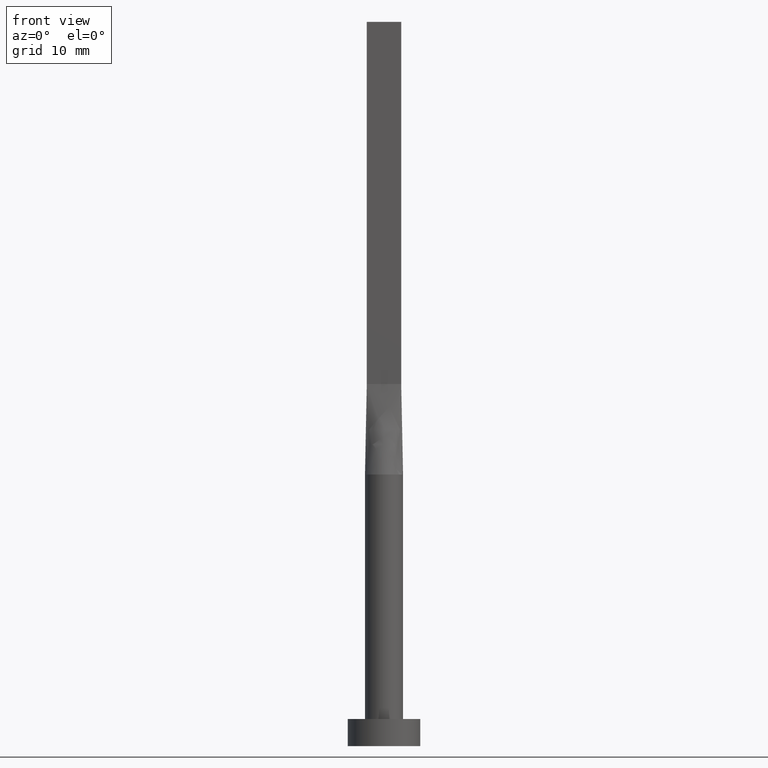
[diagram: clean part render]
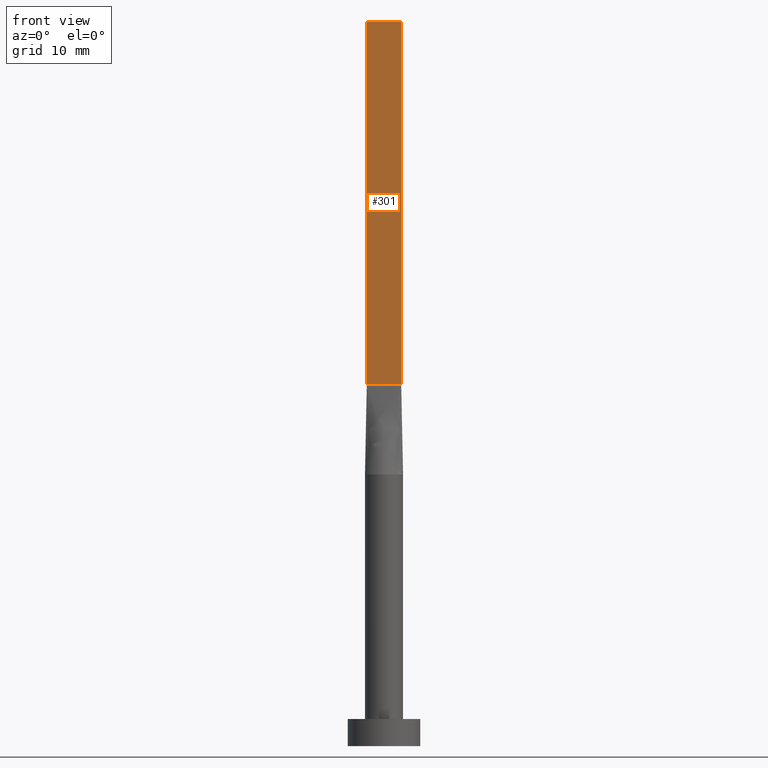
[diagram: same view with one face highlighted and labeled with its STEP entity id]
A machine part, front view. The second image highlights one B-rep face of the part: STEP entity #301.
In plain terms, the highlighted planar face has unit normal (0, 1, -0).
Its self-contained STEP definition (entity closure, byte-faithful):
#22 = ORIENTED_EDGE ( 'NONE', *, *, #190, .T. ) ;
#32 = DIRECTION ( 'NONE',  ( -1.000000000000000000, 5.706327223607918787E-17, 0.000000000000000000 ) ) ;
#48 = VERTEX_POINT ( 'NONE', #432 ) ;
#66 = VECTOR ( 'NONE', #318, 1000.000000000000000 ) ;
#69 = DIRECTION ( 'NONE',  ( 1.000000000000000000, -5.706327223607920020E-17, 0.000000000000000000 ) ) ;
#111 = EDGE_LOOP ( 'NONE', ( #22, #219, #306, #427 ) ) ;
#118 = LINE ( 'NONE', #305, #153 ) ;
#138 = CARTESIAN_POINT ( 'NONE',  ( -1.899999999999999911, -0.4999999999999995559, 40.00000000000000000 ) ) ;
#153 = VECTOR ( 'NONE', #254, 1000.000000000000000 ) ;
#155 = FACE_OUTER_BOUND ( 'NONE', #111, .T. ) ;
#159 = CARTESIAN_POINT ( 'NONE',  ( -1.899999999999999911, -0.4999999999999995559, 40.00000000000000000 ) ) ;
#190 = EDGE_CURVE ( 'NONE', #488, #336, #233, .T. ) ;
#207 = CARTESIAN_POINT ( 'NONE',  ( 1.899999999999999023, -0.4999999999999997780, 40.00000000000000000 ) ) ;
#219 = ORIENTED_EDGE ( 'NONE', *, *, #316, .F. ) ;
#233 = LINE ( 'NONE', #138, #66 ) ;
#254 = DIRECTION ( 'NONE',  ( -0.000000000000000000, -0.000000000000000000, -1.000000000000000000 ) ) ;
#266 = AXIS2_PLACEMENT_3D ( 'NONE', #442, #522, #32 ) ;
#270 = EDGE_CURVE ( 'NONE', #561, #48, #539, .T. ) ;
#301 = ADVANCED_FACE ( 'NONE', ( #155 ), #335, .F. ) ;
#305 = CARTESIAN_POINT ( 'NONE',  ( 1.899999999999999023, -0.4999999999999997780, 80.00000000000000000 ) ) ;
#306 = ORIENTED_EDGE ( 'NONE', *, *, #270, .F. ) ;
#316 = EDGE_CURVE ( 'NONE', #48, #336, #118, .T. ) ;
#318 = DIRECTION ( 'NONE',  ( 1.000000000000000000, -5.706327223607918787E-17, 0.000000000000000000 ) ) ;
#331 = CARTESIAN_POINT ( 'NONE',  ( -1.899999999999999911, -0.4999999999999995559, 80.00000000000000000 ) ) ;
#335 = PLANE ( 'NONE',  #266 ) ;
#336 = VERTEX_POINT ( 'NONE', #207 ) ;
#365 = VECTOR ( 'NONE', #438, 1000.000000000000000 ) ;
#427 = ORIENTED_EDGE ( 'NONE', *, *, #473, .T. ) ;
#432 = CARTESIAN_POINT ( 'NONE',  ( 1.899999999999999023, -0.4999999999999997780, 80.00000000000000000 ) ) ;
#436 = CARTESIAN_POINT ( 'NONE',  ( -1.899999999999999911, -0.4999999999999995559, 80.00000000000000000 ) ) ;
#438 = DIRECTION ( 'NONE',  ( -0.000000000000000000, -0.000000000000000000, -1.000000000000000000 ) ) ;
#442 = CARTESIAN_POINT ( 'NONE',  ( -1.899999999999999911, -0.4999999999999995559, 80.00000000000000000 ) ) ;
#445 = CARTESIAN_POINT ( 'NONE',  ( -1.899999999999999911, -0.4999999999999995559, 80.00000000000000000 ) ) ;
#473 = EDGE_CURVE ( 'NONE', #561, #488, #558, .T. ) ;
#488 = VERTEX_POINT ( 'NONE', #159 ) ;
#522 = DIRECTION ( 'NONE',  ( 5.706327223607918787E-17, 1.000000000000000000, -0.000000000000000000 ) ) ;
#539 = LINE ( 'NONE', #436, #541 ) ;
#541 = VECTOR ( 'NONE', #69, 1000.000000000000000 ) ;
#558 = LINE ( 'NONE', #331, #365 ) ;
#561 = VERTEX_POINT ( 'NONE', #445 ) ;